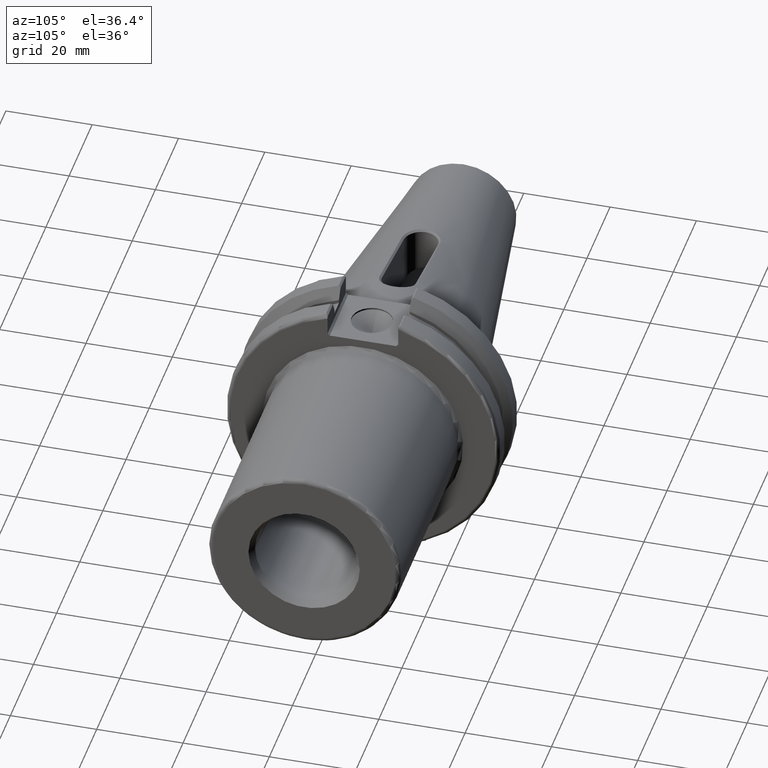
[diagram: clean part render]
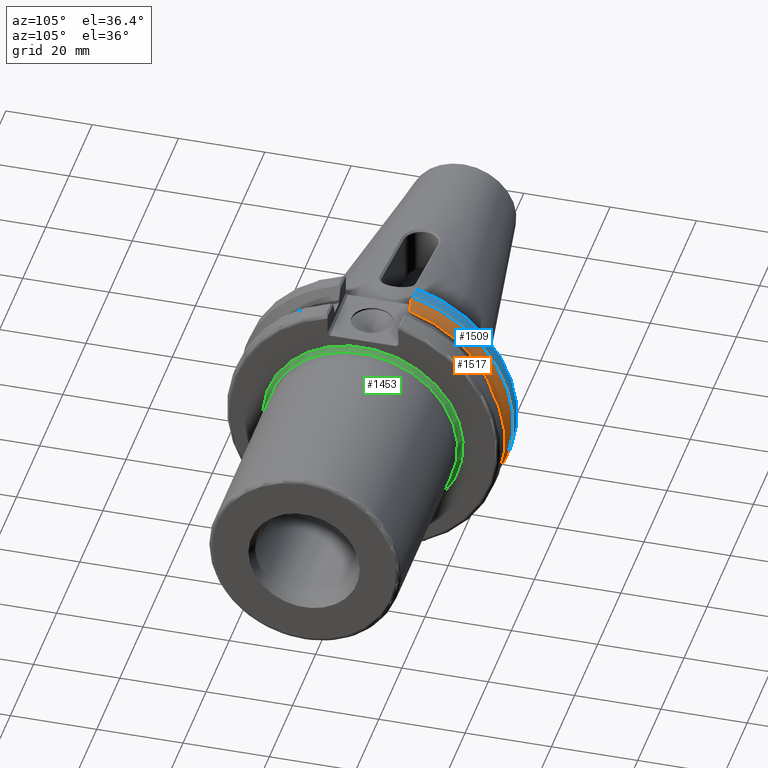
[diagram: same view with three faces highlighted in distinct colors, each labeled with its STEP entity id]
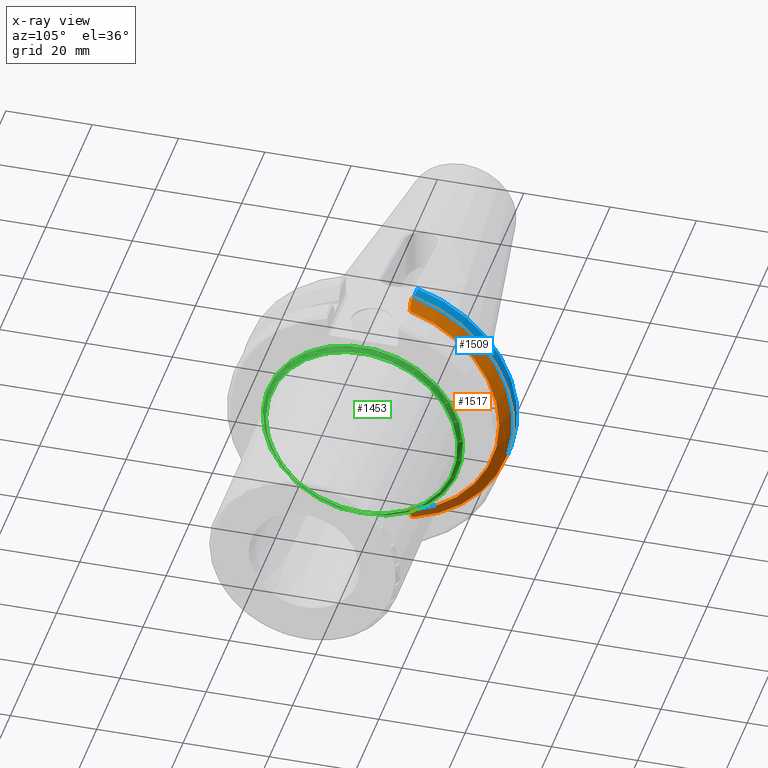
[diagram: x-ray of the same camera — body ghosted, the three highlighted faces saturated]
A machine part, auxiliary view with three faces highlighted in distinct colors.
The next image is the same camera in x-ray (body ghosted, the three faces saturated) — at least one of them is partly hidden behind the body in this view.
Their STEP definitions:

[orange] entity #1517 — the highlighted conical surface has half-angle 60 deg.
#16=(
BOUNDED_CURVE()
B_SPLINE_CURVE(2,(#2988,#2989,#2990),.UNSPECIFIED.,.F.,.F.)
B_SPLINE_CURVE_WITH_KNOTS((3,3),(0.,0.276549142796606),.UNSPECIFIED.)
CURVE()
GEOMETRIC_REPRESENTATION_ITEM()
RATIONAL_B_SPLINE_CURVE((1.,1.00095203903674,1.00031614444931))
REPRESENTATION_ITEM('')
);
#24=(
BOUNDED_CURVE()
B_SPLINE_CURVE(2,(#3171,#3172,#3173),.UNSPECIFIED.,.F.,.F.)
B_SPLINE_CURVE_WITH_KNOTS((3,3),(0.,0.0639048713675806),.UNSPECIFIED.)
CURVE()
GEOMETRIC_REPRESENTATION_ITEM()
RATIONAL_B_SPLINE_CURVE((1.,1.00028444218287,1.00047644010581))
REPRESENTATION_ITEM('')
);
#26=(
BOUNDED_CURVE()
B_SPLINE_CURVE(2,(#3205,#3206,#3207),.UNSPECIFIED.,.F.,.F.)
B_SPLINE_CURVE_WITH_KNOTS((3,3),(0.0550586467389817,0.331607789535851),
 .UNSPECIFIED.)
CURVE()
GEOMETRIC_REPRESENTATION_ITEM()
RATIONAL_B_SPLINE_CURVE((1.00031614445175,1.00095203904407,1.))
REPRESENTATION_ITEM('')
);
#30=(
BOUNDED_CURVE()
B_SPLINE_CURVE(2,(#3238,#3239,#3240),.UNSPECIFIED.,.F.,.F.)
B_SPLINE_CURVE_WITH_KNOTS((3,3),(0.329353533631191,0.393258405001025),
 .UNSPECIFIED.)
CURVE()
GEOMETRIC_REPRESENTATION_ITEM()
RATIONAL_B_SPLINE_CURVE((1.00047644010569,1.00028444218281,1.))
REPRESENTATION_ITEM('')
);
#235=FACE_OUTER_BOUND('',#323,.T.);
#323=EDGE_LOOP('',(#1377,#1378,#1379,#1380,#1381,#1382));
#588=CIRCLE('',#1639,31.75);
#593=CIRCLE('',#1652,28.9593772964944);
#694=VERTEX_POINT('',#2985);
#695=VERTEX_POINT('',#2987);
#733=VERTEX_POINT('',#3169);
#740=VERTEX_POINT('',#3202);
#741=VERTEX_POINT('',#3204);
#744=VERTEX_POINT('',#3220);
#884=EDGE_CURVE('',#695,#694,#16,.T.);
#936=EDGE_CURVE('',#733,#694,#24,.T.);
#950=EDGE_CURVE('',#741,#740,#26,.T.);
#957=EDGE_CURVE('',#733,#744,#588,.T.);
#963=EDGE_CURVE('',#741,#744,#30,.T.);
#968=EDGE_CURVE('',#695,#740,#593,.T.);
#1377=ORIENTED_EDGE('',*,*,#936,.F.);
#1378=ORIENTED_EDGE('',*,*,#957,.T.);
#1379=ORIENTED_EDGE('',*,*,#963,.F.);
#1380=ORIENTED_EDGE('',*,*,#950,.T.);
#1381=ORIENTED_EDGE('',*,*,#968,.F.);
#1382=ORIENTED_EDGE('',*,*,#884,.T.);
#1443=CONICAL_SURFACE('',#1651,30.3546886482472,1.0471975511966);
#1517=ADVANCED_FACE('',(#235),#1443,.T.);
#1639=AXIS2_PLACEMENT_3D('',#3222,#1945,#1946);
#1651=AXIS2_PLACEMENT_3D('',#3250,#1972,#1973);
#1652=AXIS2_PLACEMENT_3D('',#3251,#1974,#1975);
#1945=DIRECTION('center_axis',(1.,0.,0.));
#1946=DIRECTION('ref_axis',(0.,0.,-1.));
#1972=DIRECTION('center_axis',(-1.,0.,0.));
#1973=DIRECTION('ref_axis',(0.,1.,0.));
#1974=DIRECTION('center_axis',(1.,0.,0.));
#1975=DIRECTION('ref_axis',(0.,0.,-1.));
#2985=CARTESIAN_POINT('',(7.87958530351256,8.19,-30.1755016258903));
#2987=CARTESIAN_POINT('',(9.212,8.19,-27.7771386827498));
#2988=CARTESIAN_POINT('Ctrl Pts',(9.212,8.19,-27.7771386827498));
#2989=CARTESIAN_POINT('Ctrl Pts',(8.57336356152746,8.19,-28.9303689539641));
#2990=CARTESIAN_POINT('Ctrl Pts',(7.87958530351256,8.19,-30.1755016258903));
#3169=CARTESIAN_POINT('',(7.60083323092435,8.67204822802685,-30.5427254764662));
#3171=CARTESIAN_POINT('Ctrl Pts',(7.60083323092435,8.67204822802686,-30.5427254764662));
#3172=CARTESIAN_POINT('Ctrl Pts',(7.74189148121628,8.42917748262644,-30.357706789263));
#3173=CARTESIAN_POINT('Ctrl Pts',(7.87958530351256,8.19,-30.1755016258903));
#3202=CARTESIAN_POINT('',(9.212,8.19,27.7771386827498));
#3204=CARTESIAN_POINT('',(7.87958530351255,8.19,30.1755016258903));
#3205=CARTESIAN_POINT('Ctrl Pts',(7.87958530351255,8.19,30.1755016258903));
#3206=CARTESIAN_POINT('Ctrl Pts',(8.57336356152574,8.19,28.9303689539672));
#3207=CARTESIAN_POINT('Ctrl Pts',(9.212,8.19,27.7771386827498));
#3220=CARTESIAN_POINT('',(7.60083323092435,8.67204822802685,30.5427254764662));
#3222=CARTESIAN_POINT('Origin',(7.60083323092435,0.,0.));
#3238=CARTESIAN_POINT('Ctrl Pts',(7.87958530351255,8.19,30.1755016258903));
#3239=CARTESIAN_POINT('Ctrl Pts',(7.74189148121158,8.42917748263468,30.3577067892692));
#3240=CARTESIAN_POINT('Ctrl Pts',(7.60083323092435,8.67204822802687,30.5427254764662));
#3250=CARTESIAN_POINT('Origin',(8.40641661546218,0.,0.));
#3251=CARTESIAN_POINT('Origin',(9.212,0.,0.));

[blue] entity #1509 — the highlighted cylindrical surface (partial cylindrical patch) has radius 31.75 mm, axis along (1, 0, 0).
#112=CYLINDRICAL_SURFACE('',#1638,31.75);
#227=FACE_OUTER_BOUND('',#315,.T.);
#315=EDGE_LOOP('',(#1344,#1345,#1346,#1347));
#424=LINE('',#3170,#529);
#437=LINE('',#3221,#542);
#529=VECTOR('',#1901,10.);
#542=VECTOR('',#1944,10.);
#583=CIRCLE('',#1622,31.75);
#588=CIRCLE('',#1639,31.75);
#731=VERTEX_POINT('',#3143);
#732=VERTEX_POINT('',#3152);
#733=VERTEX_POINT('',#3169);
#744=VERTEX_POINT('',#3220);
#932=EDGE_CURVE('',#731,#732,#583,.T.);
#935=EDGE_CURVE('',#732,#733,#424,.T.);
#956=EDGE_CURVE('',#744,#731,#437,.T.);
#957=EDGE_CURVE('',#733,#744,#588,.T.);
#1344=ORIENTED_EDGE('',*,*,#932,.F.);
#1345=ORIENTED_EDGE('',*,*,#956,.F.);
#1346=ORIENTED_EDGE('',*,*,#957,.F.);
#1347=ORIENTED_EDGE('',*,*,#935,.F.);
#1509=ADVANCED_FACE('',(#227),#112,.T.);
#1622=AXIS2_PLACEMENT_3D('',#3153,#1897,#1898);
#1638=AXIS2_PLACEMENT_3D('',#3219,#1942,#1943);
#1639=AXIS2_PLACEMENT_3D('',#3222,#1945,#1946);
#1897=DIRECTION('center_axis',(-1.,0.,0.));
#1898=DIRECTION('ref_axis',(0.,1.,1.60812264967664E-16));
#1901=DIRECTION('',(1.,0.,0.));
#1942=DIRECTION('center_axis',(1.,0.,0.));
#1943=DIRECTION('ref_axis',(0.,1.,0.));
#1944=DIRECTION('',(-1.,0.,0.));
#1945=DIRECTION('center_axis',(1.,0.,0.));
#1946=DIRECTION('ref_axis',(0.,0.,-1.));
#3143=CARTESIAN_POINT('',(4.175,8.67204822802685,30.5427254764662));
#3152=CARTESIAN_POINT('',(4.175,8.67204822802685,-30.5427254764662));
#3153=CARTESIAN_POINT('Origin',(4.175,0.,0.));
#3169=CARTESIAN_POINT('',(7.60083323092435,8.67204822802685,-30.5427254764662));
#3170=CARTESIAN_POINT('',(5.38791661546218,8.67204822802685,-30.5427254764662));
#3219=CARTESIAN_POINT('Origin',(5.38791661546218,0.,0.));
#3220=CARTESIAN_POINT('',(7.60083323092435,8.67204822802685,30.5427254764662));
#3221=CARTESIAN_POINT('',(5.38791661546218,8.67204822802685,30.5427254764662));
#3222=CARTESIAN_POINT('Origin',(7.60083323092435,0.,0.));

[green] entity #1453 — the highlighted toroidal blend (fillet) surface has major radius 23.225 mm and minor (blend) radius 1 mm.
#47=B_SPLINE_CURVE_WITH_KNOTS('',3,(#2053,#2054,#2055,#2056,#2057,#2058),
 .UNSPECIFIED.,.F.,.F.,(4,2,4),(1.71265323869135,2.05590760475557,2.21500771015416),
 .UNSPECIFIED.);
#48=B_SPLINE_CURVE_WITH_KNOTS('',3,(#2061,#2062,#2063,#2064,#2065,#2066),
 .UNSPECIFIED.,.F.,.F.,(4,2,4),(1.21029876722854,1.36939887262713,1.71265323869135),
 .UNSPECIFIED.);
#119=TOROIDAL_SURFACE('',#1569,23.225,1.);
#171=FACE_OUTER_BOUND('',#255,.T.);
#255=EDGE_LOOP('',(#1003,#1004,#1005,#1006,#1007,#1008,#1009));
#557=CIRCLE('',#1567,22.225);
#558=CIRCLE('',#1568,22.225);
#559=CIRCLE('',#1570,1.);
#560=CIRCLE('',#1571,23.225);
#609=VERTEX_POINT('',#2044);
#610=VERTEX_POINT('',#2046);
#611=VERTEX_POINT('',#2050);
#612=VERTEX_POINT('',#2052);
#613=VERTEX_POINT('',#2059);
#762=EDGE_CURVE('',#610,#609,#557,.T.);
#763=EDGE_CURVE('',#609,#610,#558,.T.);
#764=EDGE_CURVE('',#610,#611,#559,.T.);
#765=EDGE_CURVE('',#612,#611,#47,.F.);
#766=EDGE_CURVE('',#612,#613,#560,.T.);
#767=EDGE_CURVE('',#611,#613,#48,.F.);
#1003=ORIENTED_EDGE('',*,*,#763,.T.);
#1004=ORIENTED_EDGE('',*,*,#764,.T.);
#1005=ORIENTED_EDGE('',*,*,#765,.F.);
#1006=ORIENTED_EDGE('',*,*,#766,.T.);
#1007=ORIENTED_EDGE('',*,*,#767,.F.);
#1008=ORIENTED_EDGE('',*,*,#764,.F.);
#1009=ORIENTED_EDGE('',*,*,#762,.T.);
#1453=ADVANCED_FACE('',(#171),#119,.F.);
#1567=AXIS2_PLACEMENT_3D('',#2047,#1705,#1706);
#1568=AXIS2_PLACEMENT_3D('',#2048,#1707,#1708);
#1569=AXIS2_PLACEMENT_3D('',#2049,#1709,#1710);
#1570=AXIS2_PLACEMENT_3D('',#2051,#1711,#1712);
#1571=AXIS2_PLACEMENT_3D('',#2060,#1713,#1714);
#1705=DIRECTION('center_axis',(-1.,0.,0.));
#1706=DIRECTION('ref_axis',(0.,-1.,-1.22464679914735E-16));
#1707=DIRECTION('center_axis',(-1.,0.,0.));
#1708=DIRECTION('ref_axis',(0.,-1.,-1.22464679914735E-16));
#1709=DIRECTION('center_axis',(-1.,0.,0.));
#1710=DIRECTION('ref_axis',(0.,0.,1.));
#1711=DIRECTION('center_axis',(0.,-1.,1.22464679914735E-16));
#1712=DIRECTION('ref_axis',(0.,-1.22464679914735E-16,-1.));
#1713=DIRECTION('center_axis',(1.,0.,0.));
#1714=DIRECTION('ref_axis',(0.,-1.,-1.22464679914735E-16));
#2044=CARTESIAN_POINT('',(20.05,-22.225,-2.72177751110499E-15));
#2046=CARTESIAN_POINT('',(20.05,-2.72177751110499E-15,-22.225));
#2047=CARTESIAN_POINT('Origin',(20.05,0.,0.));
#2048=CARTESIAN_POINT('Origin',(20.05,0.,0.));
#2049=CARTESIAN_POINT('Origin',(20.05,0.,0.));
#2050=CARTESIAN_POINT('',(19.2693752502002,-1.31446194399744E-15,-22.6));
#2051=CARTESIAN_POINT('Origin',(20.05,-2.84424219101973E-15,-23.225));
#2052=CARTESIAN_POINT('',(19.05,5.35169365715191,-22.6));
#2053=CARTESIAN_POINT('Ctrl Pts',(19.2693752502002,1.38777878078145E-16,
-22.6));
#2054=CARTESIAN_POINT('Ctrl Pts',(19.2693752502002,1.14418122021406,-22.6));
#2055=CARTESIAN_POINT('Ctrl Pts',(19.1704705030536,2.51363176994057,-22.6));
#2056=CARTESIAN_POINT('Ctrl Pts',(19.076756191356,4.18552225512046,-22.6));
#2057=CARTESIAN_POINT('Ctrl Pts',(19.05,4.82135997248993,-22.6));
#2058=CARTESIAN_POINT('Ctrl Pts',(19.05,5.35169365715191,-22.6));
#2059=CARTESIAN_POINT('',(19.05,-5.35169365715191,-22.6));
#2060=CARTESIAN_POINT('Origin',(19.05,0.,0.));
#2061=CARTESIAN_POINT('Ctrl Pts',(19.05,-5.35169365715191,-22.6));
#2062=CARTESIAN_POINT('Ctrl Pts',(19.05,-4.82135997248993,-22.6));
#2063=CARTESIAN_POINT('Ctrl Pts',(19.076756191356,-4.18552225512046,-22.6));
#2064=CARTESIAN_POINT('Ctrl Pts',(19.1704705030536,-2.51363176994057,-22.6));
#2065=CARTESIAN_POINT('Ctrl Pts',(19.2693752502002,-1.14418122021406,-22.6));
#2066=CARTESIAN_POINT('Ctrl Pts',(19.2693752502002,-2.77555756156289E-16,
-22.6));